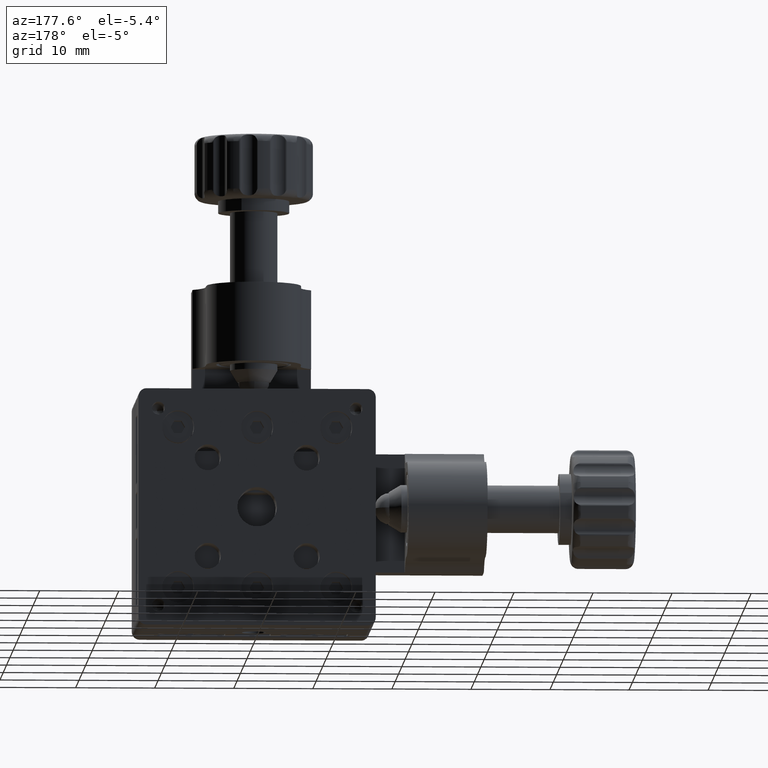
[diagram: clean part render]
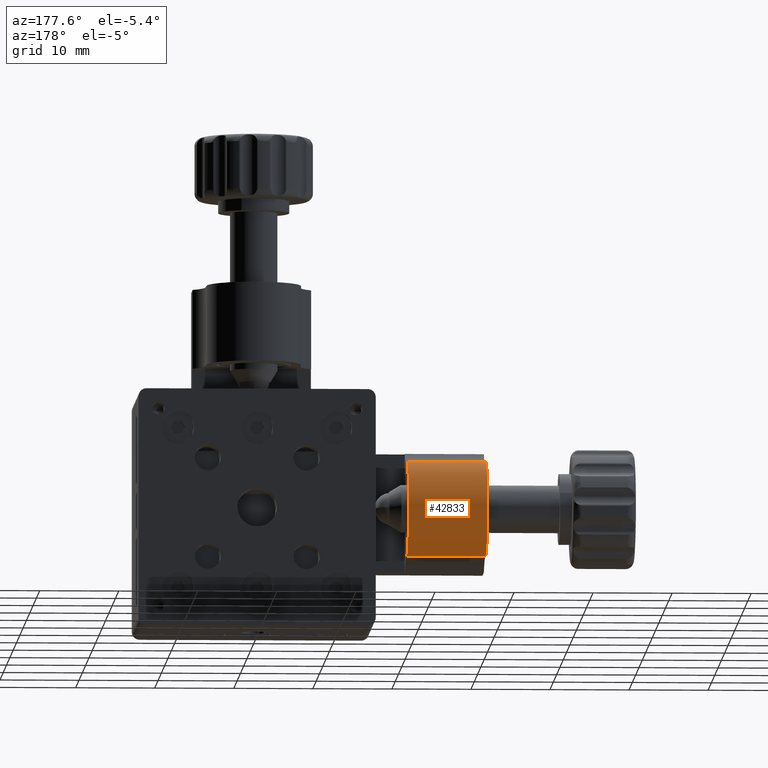
[diagram: same view with one face highlighted and labeled with its STEP entity id]
A machine part, auxiliary view. The second image highlights one B-rep face of the part: STEP entity #42833.
In plain terms, the highlighted cylindrical surface (partial cylindrical patch) has radius 6 mm, axis along (-1, 0, -0).
Its self-contained STEP definition (entity closure, byte-faithful):
#413 = CARTESIAN_POINT ( 'NONE',  ( -28.99999999999999600, 18.50000000000001800, 3.002459392220642300E-015 ) ) ;
#2955 = CARTESIAN_POINT ( 'NONE',  ( -14.99999999999999100, 18.50000000000001400, -6.000000000000007100 ) ) ;
#5138 = FACE_OUTER_BOUND ( 'NONE', #34844, .T. ) ;
#5341 = CARTESIAN_POINT ( 'NONE',  ( -28.99999999999999600, 18.50000000000001800, 6.000000000000025800 ) ) ;
#5665 = VECTOR ( 'NONE', #10755, 1000.000000000000000 ) ;
#6145 = DIRECTION ( 'NONE',  ( -1.000000000000000000, 4.790133575231719600E-016, -4.176314744178925100E-017 ) ) ;
#6399 = AXIS2_PLACEMENT_3D ( 'NONE', #6497, #6145, #29698 ) ;
#6497 = CARTESIAN_POINT ( 'NONE',  ( -18.99999999999999600, 18.50000000000001400, 3.420090866638531700E-015 ) ) ;
#6722 = CARTESIAN_POINT ( 'NONE',  ( -14.99999999999999100, 18.50000000000001400, 3.587143456405688100E-015 ) ) ;
#10494 = VERTEX_POINT ( 'NONE', #5341 ) ;
#10755 = DIRECTION ( 'NONE',  ( -1.000000000000000000, 4.790133575231719600E-016, -4.176314744178925100E-017 ) ) ;
#13040 = CIRCLE ( 'NONE', #6399, 6.000000000000012400 ) ;
#13617 = EDGE_CURVE ( 'NONE', #40704, #10494, #51155, .T. ) ;
#15238 = VERTEX_POINT ( 'NONE', #23064 ) ;
#16290 = LINE ( 'NONE', #2955, #5665 ) ;
#18521 = CARTESIAN_POINT ( 'NONE',  ( -14.99999999999999100, 18.50000000000001100, 6.000000000000025800 ) ) ;
#20342 = AXIS2_PLACEMENT_3D ( 'NONE', #6722, #26483, #38937 ) ;
#23064 = CARTESIAN_POINT ( 'NONE',  ( -28.99999999999999600, 18.50000000000002100, -6.000000000000007100 ) ) ;
#26483 = DIRECTION ( 'NONE',  ( -1.000000000000000000, 4.790133575231719600E-016, -4.176314744178925100E-017 ) ) ;
#28137 = DIRECTION ( 'NONE',  ( 0.0000000000000000000, 0.0000000000000000000, -1.000000000000000000 ) ) ;
#29437 = ORIENTED_EDGE ( 'NONE', *, *, #43866, .T. ) ;
#29698 = DIRECTION ( 'NONE',  ( 0.0000000000000000000, 0.0000000000000000000, 1.000000000000000000 ) ) ;
#29991 = VECTOR ( 'NONE', #33551, 1000.000000000000000 ) ;
#31649 = VERTEX_POINT ( 'NONE', #38374 ) ;
#33340 = EDGE_CURVE ( 'NONE', #40704, #31649, #13040, .T. ) ;
#33551 = DIRECTION ( 'NONE',  ( -1.000000000000000000, 4.790133575231719600E-016, -4.176314744178925100E-017 ) ) ;
#33668 = ORIENTED_EDGE ( 'NONE', *, *, #33340, .T. ) ;
#34844 = EDGE_LOOP ( 'NONE', ( #50999, #33668, #29437, #50647 ) ) ;
#38374 = CARTESIAN_POINT ( 'NONE',  ( -18.99999999999999600, 18.50000000000001400, -6.000000000000007100 ) ) ;
#38937 = DIRECTION ( 'NONE',  ( 0.0000000000000000000, 0.0000000000000000000, 1.000000000000000000 ) ) ;
#39832 = CYLINDRICAL_SURFACE ( 'NONE', #20342, 6.000000000000012400 ) ;
#40704 = VERTEX_POINT ( 'NONE', #46854 ) ;
#41155 = AXIS2_PLACEMENT_3D ( 'NONE', #413, #43711, #28137 ) ;
#42833 = ADVANCED_FACE ( 'NONE', ( #5138 ), #39832, .T. ) ;
#43711 = DIRECTION ( 'NONE',  ( 1.000000000000000000, -4.790133575231719600E-016, 4.176314744178925100E-017 ) ) ;
#43853 = CIRCLE ( 'NONE', #41155, 6.000000000000012400 ) ;
#43866 = EDGE_CURVE ( 'NONE', #31649, #15238, #16290, .T. ) ;
#46854 = CARTESIAN_POINT ( 'NONE',  ( -18.99999999999999600, 18.49999999999999600, 6.000000000000027500 ) ) ;
#50584 = EDGE_CURVE ( 'NONE', #15238, #10494, #43853, .T. ) ;
#50647 = ORIENTED_EDGE ( 'NONE', *, *, #50584, .T. ) ;
#50999 = ORIENTED_EDGE ( 'NONE', *, *, #13617, .F. ) ;
#51155 = LINE ( 'NONE', #18521, #29991 ) ;